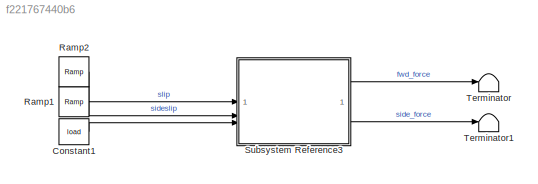
MODEL slx_f221767440b6
KIND model
CONFIG AbsTol = auto
CONFIG EnableMultiTasking = off
CONFIG FixedStep = dt
CONFIG MaxStep = auto
CONFIG MinStep = auto
CONFIG RelTol = 1e-5
CONFIG SampleTimeConstraint = Unconstrained
CONFIG SolverName = FixedStepDiscrete
CONFIG StartTime = t_0
CONFIG StopTime = t_f
BLOCK [Constant] Constant1
  Value = load
BLOCK [Reference] Ramp1  REF=simulink/Sources/Ramp
  SourceBlock = simulink/Sources/Ramp
  SourceType = Ramp
BLOCK [Reference] Ramp2  REF=simulink/Sources/Ramp
  SourceBlock = simulink/Sources/Ramp
  SourceType = Ramp
BLOCK [SubSystem] Subsystem Reference3
  ReferencedSubsystem = traction
BLOCK [Terminator] Terminator
BLOCK [Terminator] Terminator1
LINE Constant1:1 -> Subsystem Reference3:3
LINE Ramp1:1 -> Subsystem Reference3:2
LINE Ramp2:1 -> Subsystem Reference3:1
LINE Subsystem Reference3:1 -> Terminator:1
LINE Subsystem Reference3:2 -> Terminator1:1
